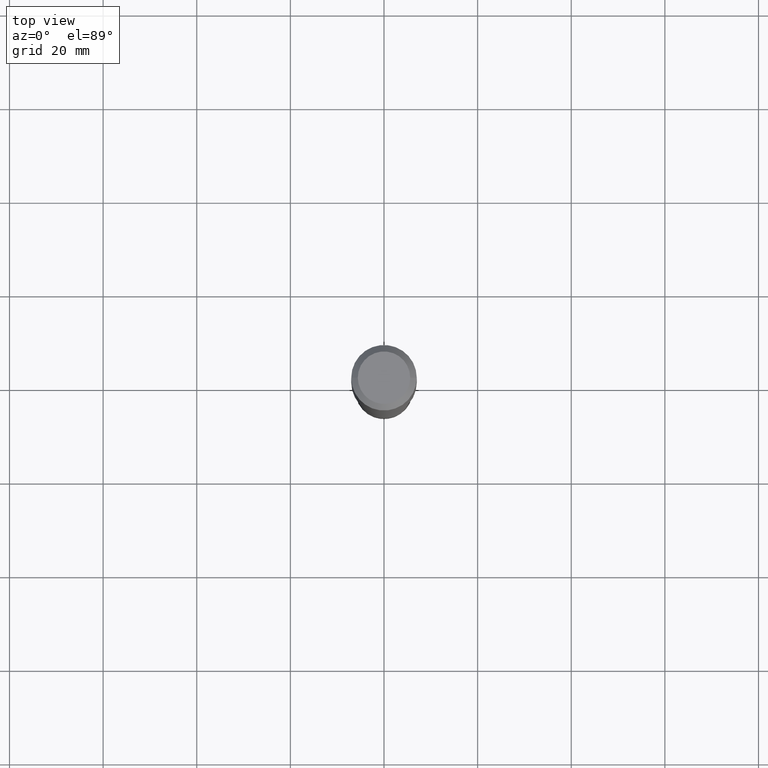
[diagram: clean part render]
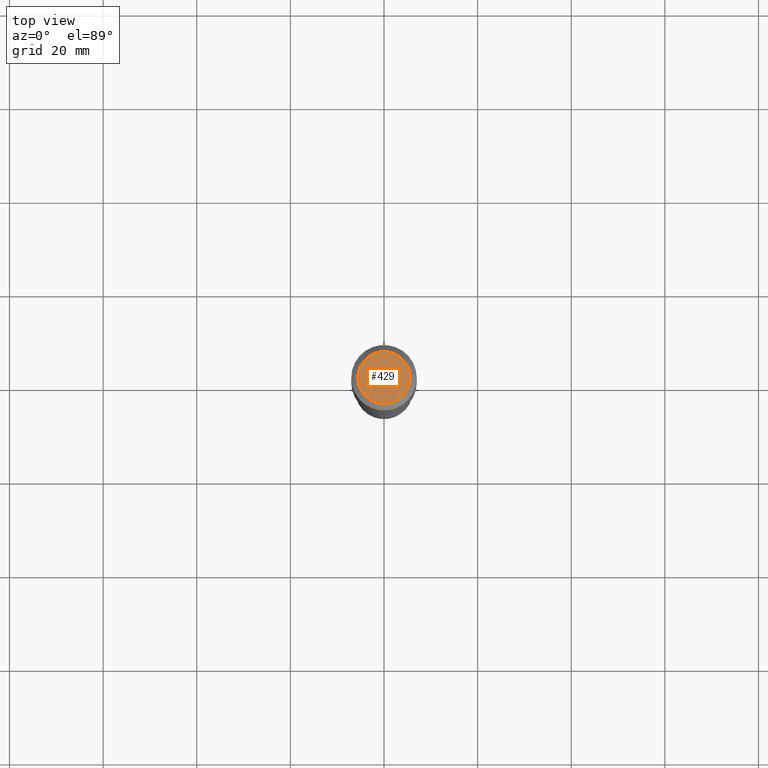
[diagram: same view with one face highlighted and labeled with its STEP entity id]
A machine part, top view. The second image highlights one B-rep face of the part: STEP entity #429.
In plain terms, the highlighted planar face has unit normal (0, -0, -1).
Its self-contained STEP definition (entity closure, byte-faithful):
#8 = ORIENTED_EDGE ( 'NONE', *, *, #46, .T. ) ;
#10 = CARTESIAN_POINT ( 'NONE',  ( -9.439721640706190018E-47, 1.347742071746724849E-32, 3.860086710912454339E-18 ) ) ;
#46 = EDGE_CURVE ( 'NONE', #133, #270, #506, .T. ) ;
#55 = ORIENTED_EDGE ( 'NONE', *, *, #89, .T. ) ;
#89 = EDGE_CURVE ( 'NONE', #270, #133, #482, .T. ) ;
#93 = CARTESIAN_POINT ( 'NONE',  ( -4.719860820353095009E-47, 6.738710358733624243E-33, 1.930043355456227170E-18 ) ) ;
#107 = CARTESIAN_POINT ( 'NONE',  ( -0.2204800000000000093, 1.635828836874783961E-15, 3.860086710901350968E-18 ) ) ;
#130 = DIRECTION ( 'NONE',  ( 1.000000000000000000, -6.982962677686266711E-15, 4.876132675269083677E-29 ) ) ;
#131 = DIRECTION ( 'NONE',  ( 2.438088387897960049E-29, -3.491481338843145188E-15, -1.000000000000000000 ) ) ;
#133 = VERTEX_POINT ( 'NONE', #178 ) ;
#155 = EDGE_LOOP ( 'NONE', ( #55, #8 ) ) ;
#169 = DIRECTION ( 'NONE',  ( -1.000000000000000000, 6.982962677686265922E-15, -4.876176775795935793E-29 ) ) ;
#178 = CARTESIAN_POINT ( 'NONE',  ( 0.2204800000000000093, -1.797903149065768707E-15, 3.860086710924123164E-18 ) ) ;
#188 = AXIS2_PLACEMENT_3D ( 'NONE', #380, #411, #302 ) ;
#211 = PLANE ( 'NONE',  #491 ) ;
#270 = VERTEX_POINT ( 'NONE', #107 ) ;
#279 = AXIS2_PLACEMENT_3D ( 'NONE', #10, #319, #130 ) ;
#302 = DIRECTION ( 'NONE',  ( 1.000000000000000000, -6.982962677686266711E-15, 4.876132675269083677E-29 ) ) ;
#319 = DIRECTION ( 'NONE',  ( -2.445468806185136597E-29, 3.491481338843145583E-15, 1.000000000000000000 ) ) ;
#380 = CARTESIAN_POINT ( 'NONE',  ( -9.439721640706190018E-47, 1.347742071746724849E-32, 3.860086710912454339E-18 ) ) ;
#411 = DIRECTION ( 'NONE',  ( -2.445468806185136597E-29, 3.491481338843145583E-15, 1.000000000000000000 ) ) ;
#429 = ADVANCED_FACE ( 'NONE', ( #452 ), #211, .F. ) ;
#452 = FACE_OUTER_BOUND ( 'NONE', #155, .T. ) ;
#482 = CIRCLE ( 'NONE', #188, 0.2204800000000000093 ) ;
#491 = AXIS2_PLACEMENT_3D ( 'NONE', #93, #131, #169 ) ;
#506 = CIRCLE ( 'NONE', #279, 0.2204800000000000093 ) ;